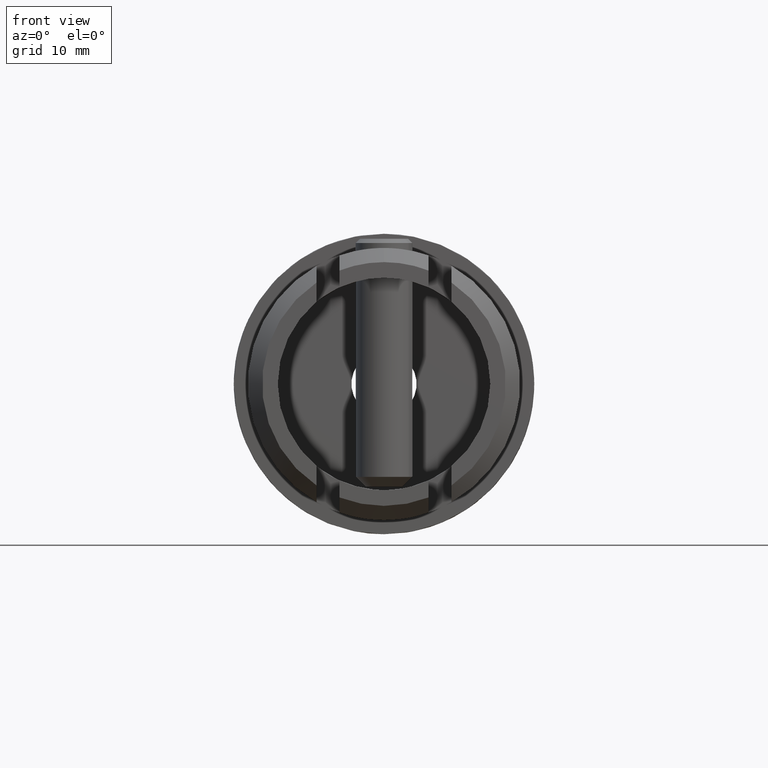
[diagram: clean part render]
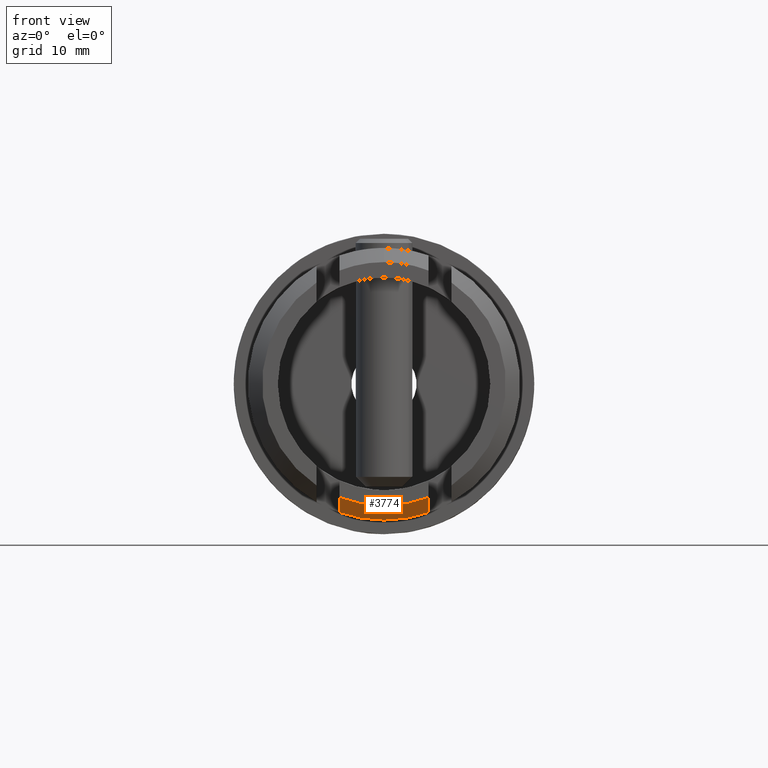
[diagram: same view with one face highlighted and labeled with its STEP entity id]
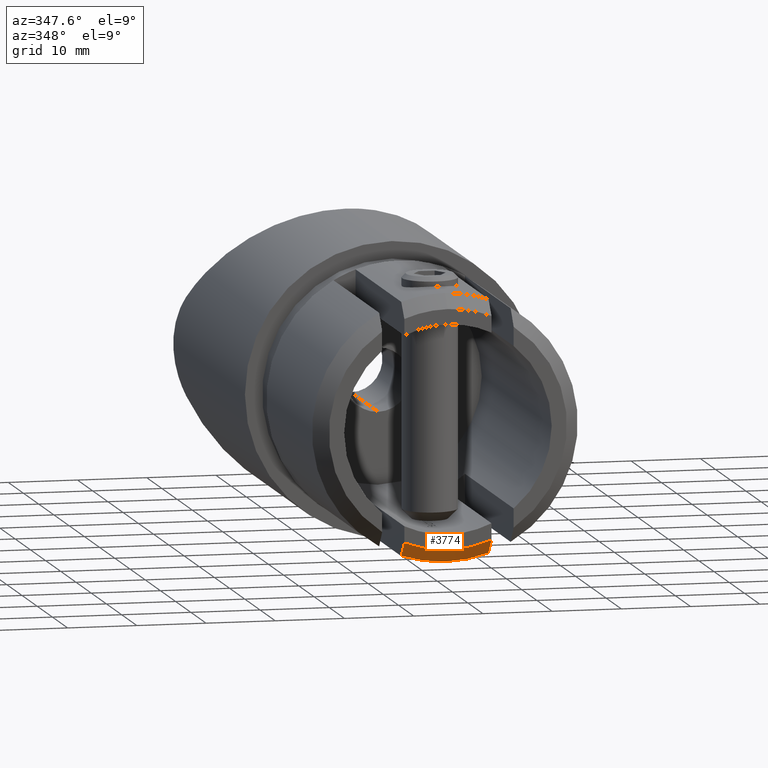
[diagram: same view with one face highlighted and labeled with its STEP entity id]
A machine part, front view. The second image highlights one B-rep face of the part: STEP entity #3774.
A second angle (auxiliary view) of the same face is appended — the face is thin or edge-on in the first view.
In plain terms, the highlighted conical surface has half-angle 45 deg.
Its self-contained STEP definition (entity closure, byte-faithful):
#300 = DIRECTION ( 'NONE',  ( 0.0000000000000000000, 0.0000000000000000000, -1.000000000000000000 ) ) ;
#308 = CIRCLE ( 'NONE', #11004, 19.19999999999999900 ) ;
#374 = DIRECTION ( 'NONE',  ( 0.0000000000000000000, 0.0000000000000000000, 1.000000000000000000 ) ) ;
#704 = CARTESIAN_POINT ( 'NONE',  ( 6.299999999999999800, -35.66924083333929500, -17.42851328667118300 ) ) ;
#1853 = B_SPLINE_CURVE_WITH_KNOTS ( 'NONE', 3,
 ( #6892, #13372, #704, #8109 ),
 .UNSPECIFIED., .F., .F.,
 ( 4, 4 ),
 ( 0.07517241790175971400, 0.07808735821053748600 ),
 .UNSPECIFIED. ) ;
#2023 = VERTEX_POINT ( 'NONE', #7025 ) ;
#3460 = CARTESIAN_POINT ( 'NONE',  ( -6.299999999999999800, -37.00000000000000000, -16.00468681355560500 ) ) ;
#3774 = ADVANCED_FACE ( 'NONE', ( #8546 ), #4622, .T. ) ;
#3881 = VERTEX_POINT ( 'NONE', #8023 ) ;
#4622 = CONICAL_SURFACE ( 'NONE', #10185, 17.20000000000002100, 0.7853981633974457300 ) ;
#5707 = CARTESIAN_POINT ( 'NONE',  ( 0.0000000000000000000, -37.00000000000000000, 0.0000000000000000000 ) ) ;
#5849 = EDGE_CURVE ( 'NONE', #3881, #7314, #1853, .T. ) ;
#6575 = CARTESIAN_POINT ( 'NONE',  ( -6.299999999999999800, -35.66918652786424100, -17.42857077502866800 ) ) ;
#6892 = CARTESIAN_POINT ( 'NONE',  ( 6.299999999999999800, -37.00000000000000000, -16.00468681355560500 ) ) ;
#6929 = CARTESIAN_POINT ( 'NONE',  ( 0.0000000000000000000, -35.00000000000000700, 0.0000000000000000000 ) ) ;
#7025 = CARTESIAN_POINT ( 'NONE',  ( -6.299999999999999800, -37.00000000000000000, -16.00468681355560500 ) ) ;
#7314 = VERTEX_POINT ( 'NONE', #12446 ) ;
#7711 = CARTESIAN_POINT ( 'NONE',  ( -6.299999999999999800, -36.33616607284158600, -16.71809930829146000 ) ) ;
#7891 = AXIS2_PLACEMENT_3D ( 'NONE', #9757, #10789, #300 ) ;
#8023 = CARTESIAN_POINT ( 'NONE',  ( 6.299999999999999800, -37.00000000000000000, -16.00468681355560500 ) ) ;
#8109 = CARTESIAN_POINT ( 'NONE',  ( 6.299999999999999800, -35.00000000000000700, -18.13697880023021000 ) ) ;
#8221 = EDGE_CURVE ( 'NONE', #7314, #11906, #308, .T. ) ;
#8546 = FACE_OUTER_BOUND ( 'NONE', #10654, .T. ) ;
#9481 = ORIENTED_EDGE ( 'NONE', *, *, #9568, .F. ) ;
#9568 = EDGE_CURVE ( 'NONE', #2023, #3881, #10876, .T. ) ;
#9634 = ORIENTED_EDGE ( 'NONE', *, *, #12768, .F. ) ;
#9757 = CARTESIAN_POINT ( 'NONE',  ( 0.0000000000000000000, -37.00000000000000000, 0.0000000000000000000 ) ) ;
#10185 = AXIS2_PLACEMENT_3D ( 'NONE', #5707, #10866, #374 ) ;
#10654 = EDGE_LOOP ( 'NONE', ( #10870, #9481, #9634, #11910 ) ) ;
#10789 = DIRECTION ( 'NONE',  ( 0.0000000000000000000, -1.000000000000000000, 0.0000000000000000000 ) ) ;
#10866 = DIRECTION ( 'NONE',  ( 0.0000000000000000000, 1.000000000000000000, 0.0000000000000000000 ) ) ;
#10870 = ORIENTED_EDGE ( 'NONE', *, *, #5849, .F. ) ;
#10876 = CIRCLE ( 'NONE', #7891, 17.20000000000002100 ) ;
#11004 = AXIS2_PLACEMENT_3D ( 'NONE', #6929, #11182, #11226 ) ;
#11182 = DIRECTION ( 'NONE',  ( 0.0000000000000000000, 1.000000000000000000, 0.0000000000000000000 ) ) ;
#11226 = DIRECTION ( 'NONE',  ( 0.0000000000000000000, 0.0000000000000000000, -1.000000000000000000 ) ) ;
#11754 = CARTESIAN_POINT ( 'NONE',  ( -6.299999999999999800, -35.00000000000000700, -18.13697880023020700 ) ) ;
#11906 = VERTEX_POINT ( 'NONE', #12560 ) ;
#11910 = ORIENTED_EDGE ( 'NONE', *, *, #8221, .F. ) ;
#12085 = B_SPLINE_CURVE_WITH_KNOTS ( 'NONE', 3,
 ( #11754, #6575, #7711, #3460 ),
 .UNSPECIFIED., .F., .F.,
 ( 4, 4 ),
 ( 0.03304115507826582000, 0.03596462002918410200 ),
 .UNSPECIFIED. ) ;
#12446 = CARTESIAN_POINT ( 'NONE',  ( 6.299999999999999800, -35.00000000000000700, -18.13697880023021000 ) ) ;
#12560 = CARTESIAN_POINT ( 'NONE',  ( -6.299999999999999800, -35.00000000000000700, -18.13697880023020700 ) ) ;
#12768 = EDGE_CURVE ( 'NONE', #11906, #2023, #12085, .T. ) ;
#13372 = CARTESIAN_POINT ( 'NONE',  ( 6.299999999999999800, -36.33622662240782800, -16.71803423656893600 ) ) ;